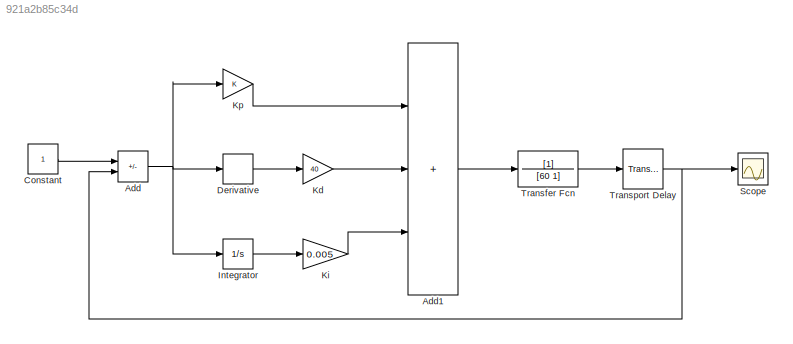
MODEL slx_921a2b85c34d
KIND model
CONFIG AbsTol = auto
CONFIG EnableMultiTasking = off
CONFIG FixedStep = auto
CONFIG MaxStep = auto
CONFIG MinStep = auto
CONFIG RelTol = 1e-3
CONFIG SampleTimeConstraint = Unconstrained
CONFIG SolverName = VariableStepAuto
CONFIG StartTime = 0.0
CONFIG StopTime = 1000.0
BLOCK [Sum] Add
  IconShape = rectangular
  Inputs = +-
  Ports = [2, 1]
BLOCK [Sum] Add1
  IconShape = rectangular
  Inputs = +++
  Ports = [3, 1]
BLOCK [Constant] Constant
BLOCK [Derivative] Derivative
BLOCK [Integrator] Integrator
  Ports = [1, 1]
BLOCK [Gain] Kd
  Gain = 40
BLOCK [Gain] Ki
  Gain = 0.005
BLOCK [Gain] Kp
BLOCK [Scope] Scope
  Floating = off
  NumInputPorts = 1
  Ports = [1]
  ScopeSpecificationString = Simulink.scopes.TimeScopeBlockCfg('CurrentConfiguration', extmgr.ConfigurationSet(extmgr.Configuration('Core','General UI',true),extmgr.Configuration('Core','Source UI',true),extmgr.Configuration('Sources','WiredSimulink',true),extmgr.Configuration('Visuals','Time Domain',true,'SerializedDisplays',{struct('MinYLimReal','-0.12313','MaxYLimReal','1.1082','YLabelReal','','MinYLimMag','0.00000','MaxYL...<+1400ch>
BLOCK [TransferFcn] Transfer Fcn
  Denominator = [60 1]
BLOCK [TransportDelay] Transport Delay
  DelayTime = 80
  Ports = [1, 1]
LINE Add1:1 -> Transfer Fcn:1
NET Add:1 -> Derivative:1, Integrator:1, Kp:1
LINE Constant:1 -> Add:1
LINE Derivative:1 -> Kd:1
LINE Integrator:1 -> Ki:1
LINE Kd:1 -> Add1:2
LINE Ki:1 -> Add1:3
LINE Kp:1 -> Add1:1
LINE Transfer Fcn:1 -> Transport Delay:1
NET Transport Delay:1 -> Add:2, Scope:1
note: NET lines group one-source signal fan-out (src -> all destinations, sorted); 1:1 wires keep LINE
